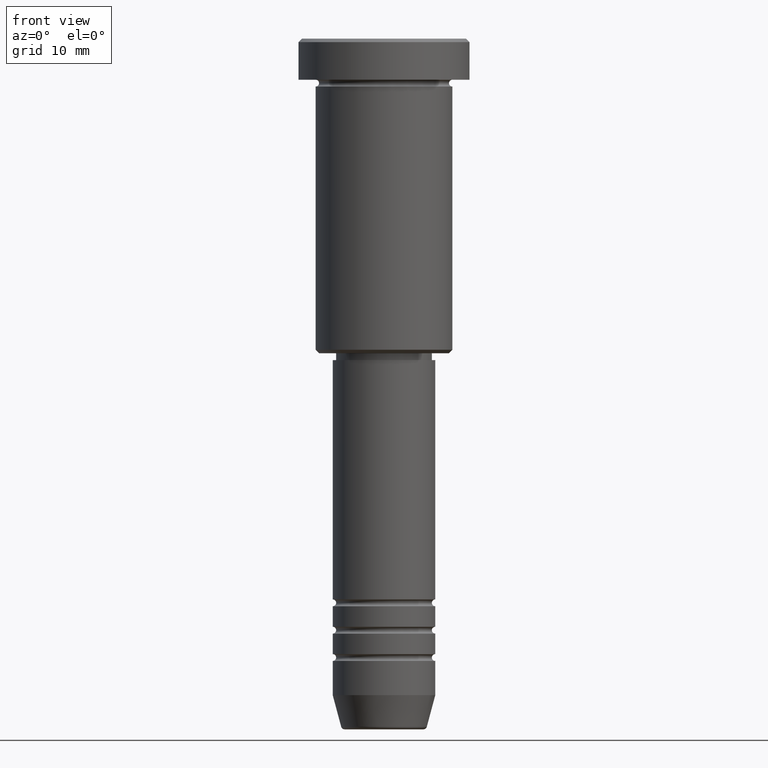
[diagram: clean part render]
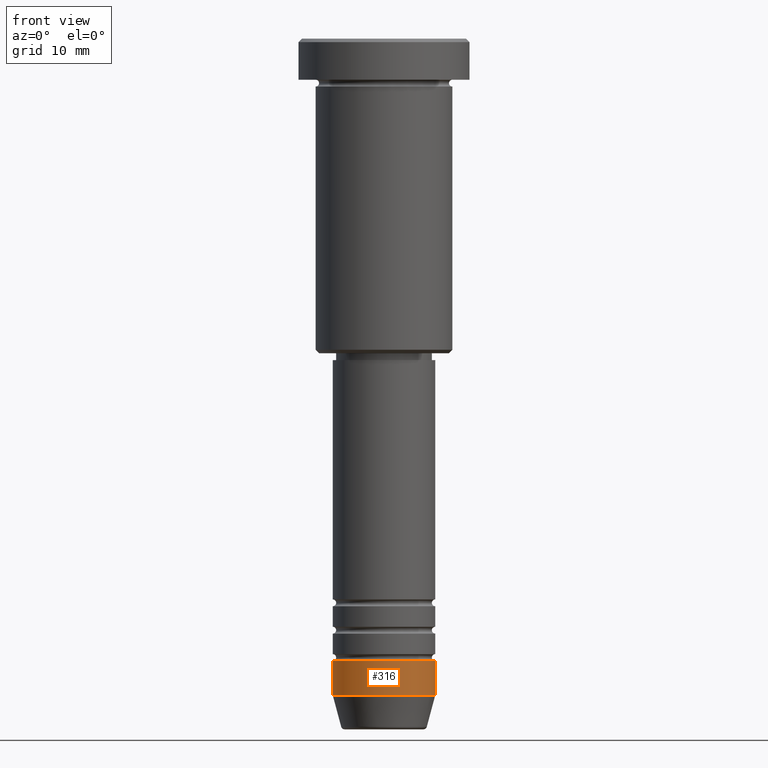
[diagram: same view with one face highlighted and labeled with its STEP entity id]
A machine part, front view. The second image highlights one B-rep face of the part: STEP entity #316.
In plain terms, the highlighted cylindrical surface (partial cylindrical patch) has radius 7.5 mm, axis along (-0, -0, 1).
Its self-contained STEP definition (entity closure, byte-faithful):
#28 = CARTESIAN_POINT ( 'NONE',  ( 7.500000000000000000, 0.000000000000000000, -91.00000000000000000 ) ) ;
#34 = VERTEX_POINT ( 'NONE', #782 ) ;
#69 = VERTEX_POINT ( 'NONE', #1021 ) ;
#109 = EDGE_CURVE ( 'NONE', #69, #34, #580, .T. ) ;
#114 = ORIENTED_EDGE ( 'NONE', *, *, #130, .F. ) ;
#120 = DIRECTION ( 'NONE',  ( -0.000000000000000000, -0.000000000000000000, 1.000000000000000000 ) ) ;
#130 = EDGE_CURVE ( 'NONE', #69, #999, #579, .T. ) ;
#144 = EDGE_CURVE ( 'NONE', #34, #559, #393, .T. ) ;
#178 = EDGE_CURVE ( 'NONE', #999, #559, #844, .T. ) ;
#275 = AXIS2_PLACEMENT_3D ( 'NONE', #959, #589, #502 ) ;
#309 = CARTESIAN_POINT ( 'NONE',  ( 7.500000000000000000, 0.000000000000000000, 0.000000000000000000 ) ) ;
#316 = ADVANCED_FACE ( 'NONE', ( #443 ), #904, .T. ) ;
#355 = AXIS2_PLACEMENT_3D ( 'NONE', #786, #120, #402 ) ;
#393 = LINE ( 'NONE', #309, #655 ) ;
#402 = DIRECTION ( 'NONE',  ( 1.000000000000000000, 0.000000000000000000, 0.000000000000000000 ) ) ;
#443 = FACE_OUTER_BOUND ( 'NONE', #760, .T. ) ;
#502 = DIRECTION ( 'NONE',  ( 1.000000000000000000, 0.000000000000000000, 0.000000000000000000 ) ) ;
#523 = CARTESIAN_POINT ( 'NONE',  ( 0.000000000000000000, 0.000000000000000000, 0.000000000000000000 ) ) ;
#559 = VERTEX_POINT ( 'NONE', #28 ) ;
#579 = LINE ( 'NONE', #945, #1173 ) ;
#580 = CIRCLE ( 'NONE', #275, 7.500000000000000000 ) ;
#589 = DIRECTION ( 'NONE',  ( -0.000000000000000000, -0.000000000000000000, 1.000000000000000000 ) ) ;
#603 = ORIENTED_EDGE ( 'NONE', *, *, #109, .T. ) ;
#655 = VECTOR ( 'NONE', #1036, 1000.000000000000000 ) ;
#725 = DIRECTION ( 'NONE',  ( 1.000000000000000000, 0.000000000000000000, 0.000000000000000000 ) ) ;
#760 = EDGE_LOOP ( 'NONE', ( #114, #603, #1182, #826 ) ) ;
#782 = CARTESIAN_POINT ( 'NONE',  ( 7.500000000000000000, 0.000000000000000000, -96.00000000000000000 ) ) ;
#786 = CARTESIAN_POINT ( 'NONE',  ( 0.000000000000000000, 0.000000000000000000, -91.00000000000000000 ) ) ;
#813 = AXIS2_PLACEMENT_3D ( 'NONE', #523, #1169, #725 ) ;
#826 = ORIENTED_EDGE ( 'NONE', *, *, #178, .F. ) ;
#844 = CIRCLE ( 'NONE', #355, 7.500000000000000000 ) ;
#904 = CYLINDRICAL_SURFACE ( 'NONE', #813, 7.500000000000000000 ) ;
#945 = CARTESIAN_POINT ( 'NONE',  ( -7.500000000000000000, 9.184850993605147944E-16, 0.000000000000000000 ) ) ;
#959 = CARTESIAN_POINT ( 'NONE',  ( 0.000000000000000000, 0.000000000000000000, -96.00000000000000000 ) ) ;
#999 = VERTEX_POINT ( 'NONE', #1142 ) ;
#1021 = CARTESIAN_POINT ( 'NONE',  ( -7.500000000000000000, 9.184850993605147944E-16, -96.00000000000000000 ) ) ;
#1036 = DIRECTION ( 'NONE',  ( -0.000000000000000000, -0.000000000000000000, 1.000000000000000000 ) ) ;
#1043 = DIRECTION ( 'NONE',  ( -0.000000000000000000, -0.000000000000000000, 1.000000000000000000 ) ) ;
#1142 = CARTESIAN_POINT ( 'NONE',  ( -7.500000000000000000, 9.184850993605147944E-16, -91.00000000000000000 ) ) ;
#1169 = DIRECTION ( 'NONE',  ( -0.000000000000000000, -0.000000000000000000, 1.000000000000000000 ) ) ;
#1173 = VECTOR ( 'NONE', #1043, 1000.000000000000000 ) ;
#1182 = ORIENTED_EDGE ( 'NONE', *, *, #144, .T. ) ;